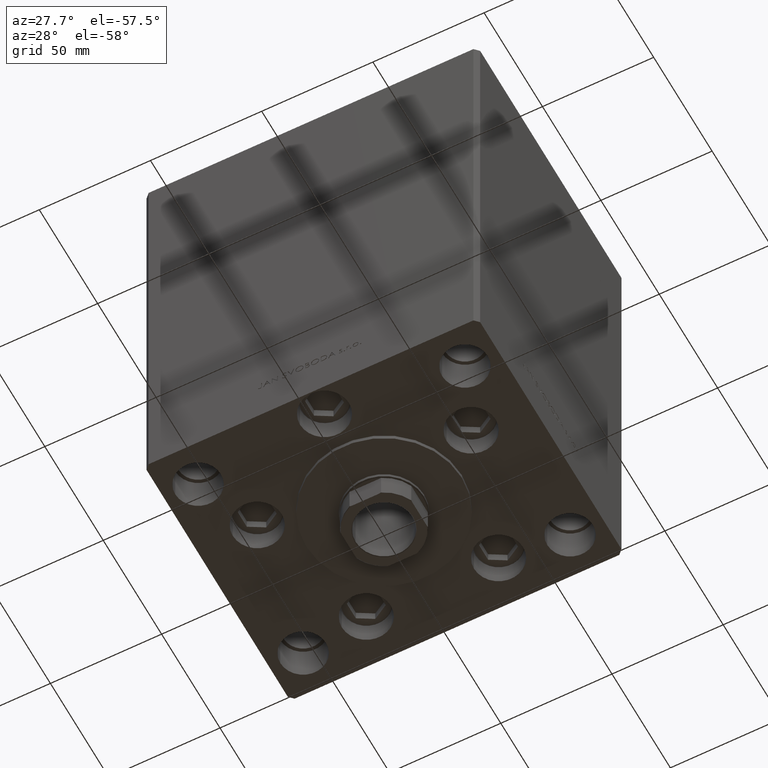
[diagram: clean part render]
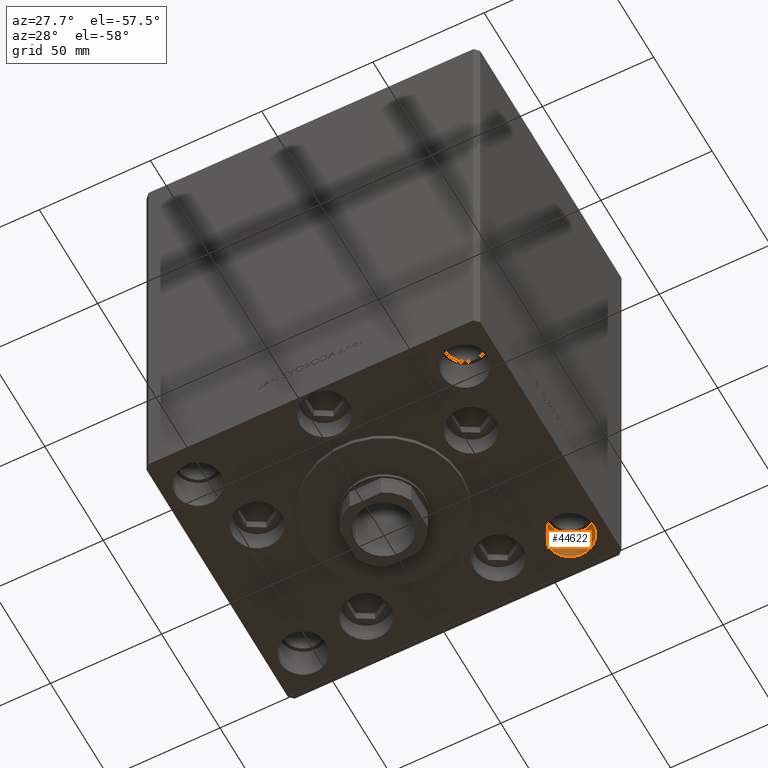
[diagram: same view with one face highlighted and labeled with its STEP entity id]
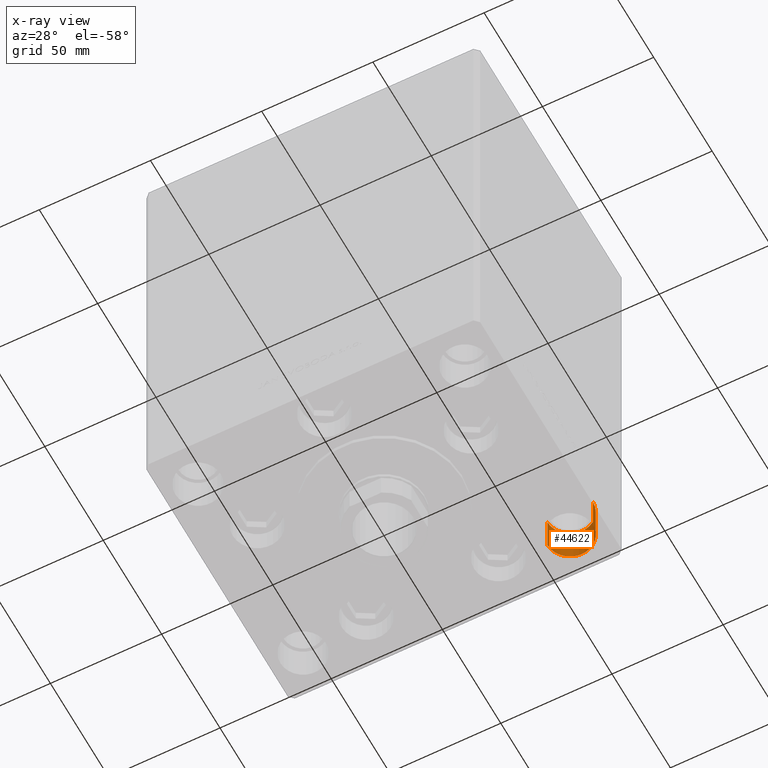
[diagram: x-ray of the same camera — body ghosted, the highlighted face saturated]
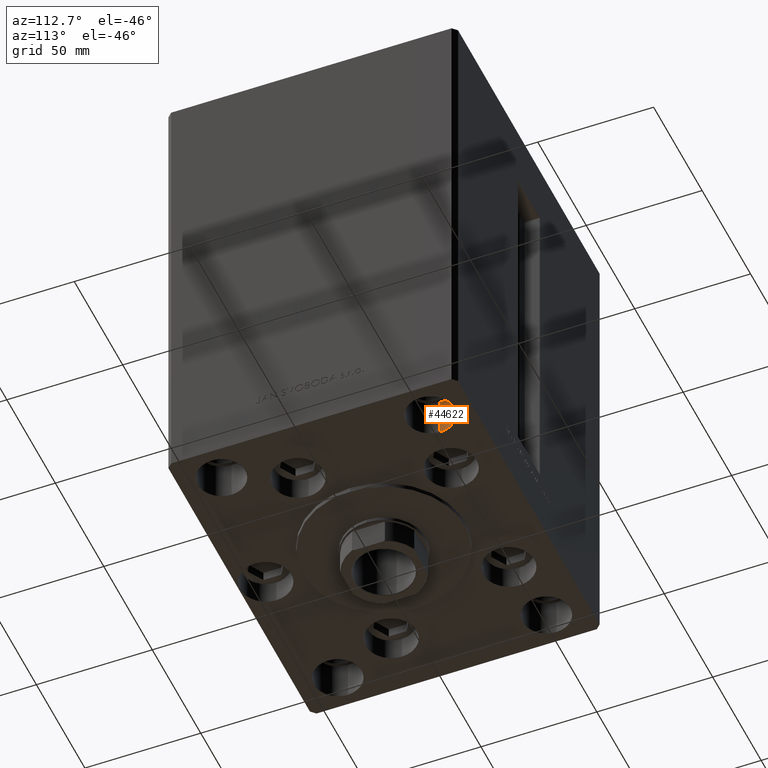
[diagram: same view with one face highlighted and labeled with its STEP entity id]
A machine part, auxiliary view. The second image highlights one B-rep face of the part: STEP entity #44622.
The next image is the same camera in x-ray: the body ghosted, the highlighted face saturated — about 0% of this face is hidden behind the body in this view.
A second angle (auxiliary view) of the same face is appended — the face is thin or edge-on in the first view.
In plain terms, the highlighted cylindrical surface (edge-blend (fillet) strip) has radius 10.25 mm, axis along (0, 0, -1).
Its self-contained STEP definition (entity closure, byte-faithful):
#497 = LINE ( 'NONE', #45531, #38886 ) ;
#2001 = DIRECTION ( 'NONE',  ( 1.000000000000000000, 0.000000000000000000, 0.000000000000000000 ) ) ;
#4592 = DIRECTION ( 'NONE',  ( 1.000000000000000000, 0.000000000000000000, 0.000000000000000000 ) ) ;
#5010 = VERTEX_POINT ( 'NONE', #16107 ) ;
#5704 = CARTESIAN_POINT ( 'NONE',  ( -60.00000000000000000, 45.00000000000000711, -17.00000000000000000 ) ) ;
#8871 = VERTEX_POINT ( 'NONE', #20124 ) ;
#10166 = CARTESIAN_POINT ( 'NONE',  ( -49.74999999999999289, 45.00000000000000711, -17.00000000000000000 ) ) ;
#12724 = EDGE_LOOP ( 'NONE', ( #22611, #12728, #43151, #47767 ) ) ;
#12728 = ORIENTED_EDGE ( 'NONE', *, *, #22169, .F. ) ;
#13492 = DIRECTION ( 'NONE',  ( 1.000000000000000000, 0.000000000000000000, 0.000000000000000000 ) ) ;
#14628 = CARTESIAN_POINT ( 'NONE',  ( -70.25000000000000000, 45.00000000000000711, -17.00000000000000000 ) ) ;
#14864 = DIRECTION ( 'NONE',  ( -0.000000000000000000, -0.000000000000000000, 1.000000000000000000 ) ) ;
#16107 = CARTESIAN_POINT ( 'NONE',  ( -49.74999999999999289, 45.00000000000000711, 0.000000000000000000 ) ) ;
#16697 = CIRCLE ( 'NONE', #44350, 10.25000000000000178 ) ;
#20124 = CARTESIAN_POINT ( 'NONE',  ( -70.25000000000000000, 45.00000000000000711, 0.000000000000000000 ) ) ;
#20631 = DIRECTION ( 'NONE',  ( -0.000000000000000000, -0.000000000000000000, 1.000000000000000000 ) ) ;
#20818 = EDGE_CURVE ( 'NONE', #5010, #8871, #38000, .T. ) ;
#21485 = VERTEX_POINT ( 'NONE', #10166 ) ;
#22169 = EDGE_CURVE ( 'NONE', #21485, #40706, #16697, .T. ) ;
#22611 = ORIENTED_EDGE ( 'NONE', *, *, #35585, .F. ) ;
#22759 = LINE ( 'NONE', #14628, #35214 ) ;
#25348 = CARTESIAN_POINT ( 'NONE',  ( -60.00000000000000000, 45.00000000000000711, -17.00000000000000000 ) ) ;
#26725 = DIRECTION ( 'NONE',  ( -0.000000000000000000, -0.000000000000000000, 1.000000000000000000 ) ) ;
#27078 = EDGE_CURVE ( 'NONE', #21485, #5010, #497, .T. ) ;
#31220 = CARTESIAN_POINT ( 'NONE',  ( -70.25000000000000000, 45.00000000000000711, -17.00000000000000000 ) ) ;
#35214 = VECTOR ( 'NONE', #26725, 1000.000000000000000 ) ;
#35585 = EDGE_CURVE ( 'NONE', #40706, #8871, #22759, .T. ) ;
#36501 = FACE_OUTER_BOUND ( 'NONE', #12724, .T. ) ;
#38000 = CIRCLE ( 'NONE', #47465, 10.25000000000000178 ) ;
#38523 = AXIS2_PLACEMENT_3D ( 'NONE', #25348, #20631, #13492 ) ;
#38727 = DIRECTION ( 'NONE',  ( 0.000000000000000000, 0.000000000000000000, 1.000000000000000000 ) ) ;
#38886 = VECTOR ( 'NONE', #14864, 1000.000000000000000 ) ;
#39603 = DIRECTION ( 'NONE',  ( 0.000000000000000000, 0.000000000000000000, 1.000000000000000000 ) ) ;
#40706 = VERTEX_POINT ( 'NONE', #31220 ) ;
#42919 = CARTESIAN_POINT ( 'NONE',  ( -60.00000000000000000, 45.00000000000000711, 0.000000000000000000 ) ) ;
#43151 = ORIENTED_EDGE ( 'NONE', *, *, #27078, .T. ) ;
#44350 = AXIS2_PLACEMENT_3D ( 'NONE', #5704, #39603, #2001 ) ;
#44622 = ADVANCED_FACE ( 'NONE', ( #36501 ), #47864, .F. ) ;
#45531 = CARTESIAN_POINT ( 'NONE',  ( -49.74999999999999289, 45.00000000000000711, -17.00000000000000000 ) ) ;
#47465 = AXIS2_PLACEMENT_3D ( 'NONE', #42919, #38727, #4592 ) ;
#47767 = ORIENTED_EDGE ( 'NONE', *, *, #20818, .T. ) ;
#47864 = CYLINDRICAL_SURFACE ( 'NONE', #38523, 10.25000000000000178 ) ;